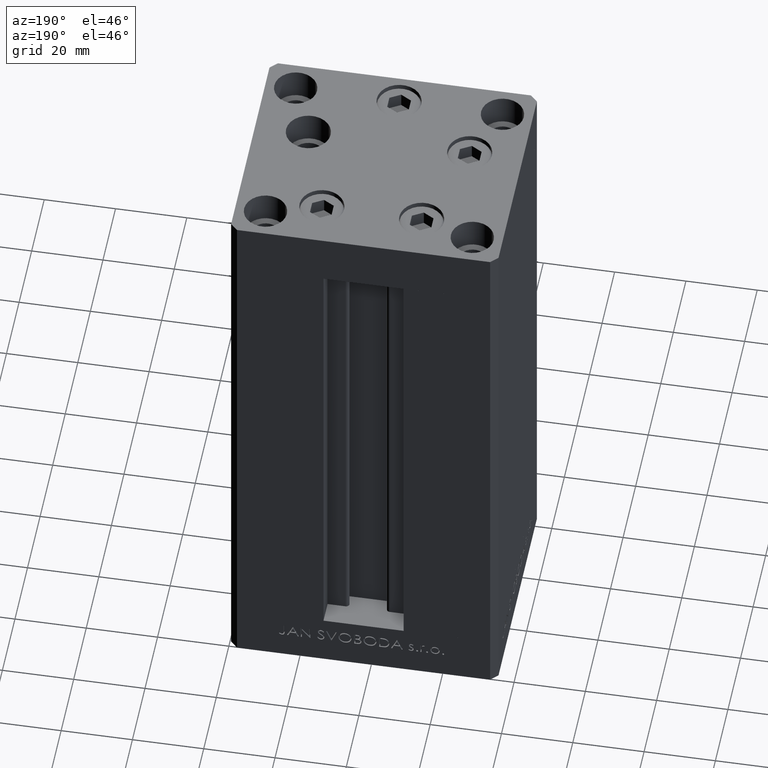
[diagram: clean part render]
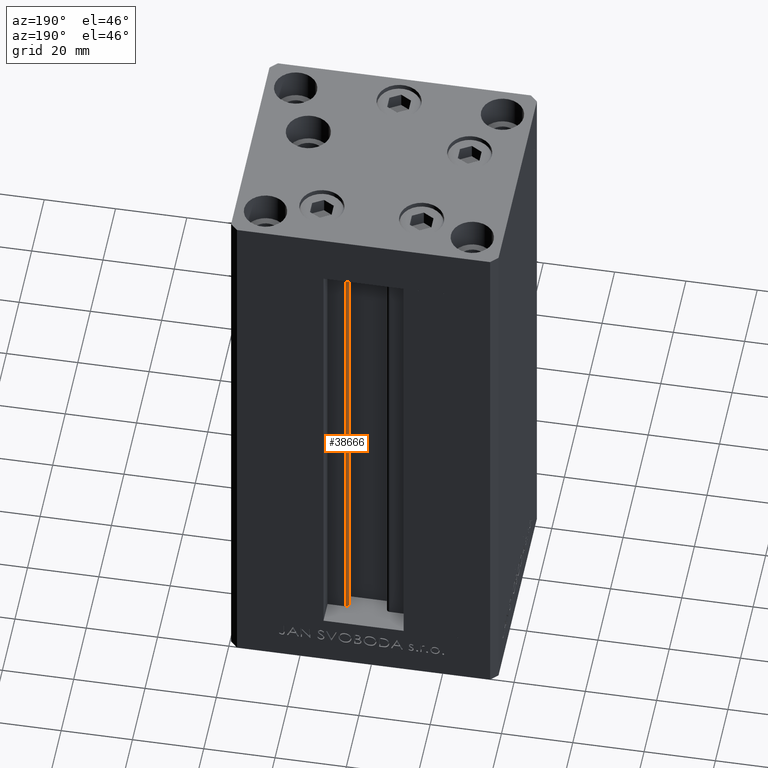
[diagram: same view with one face highlighted and labeled with its STEP entity id]
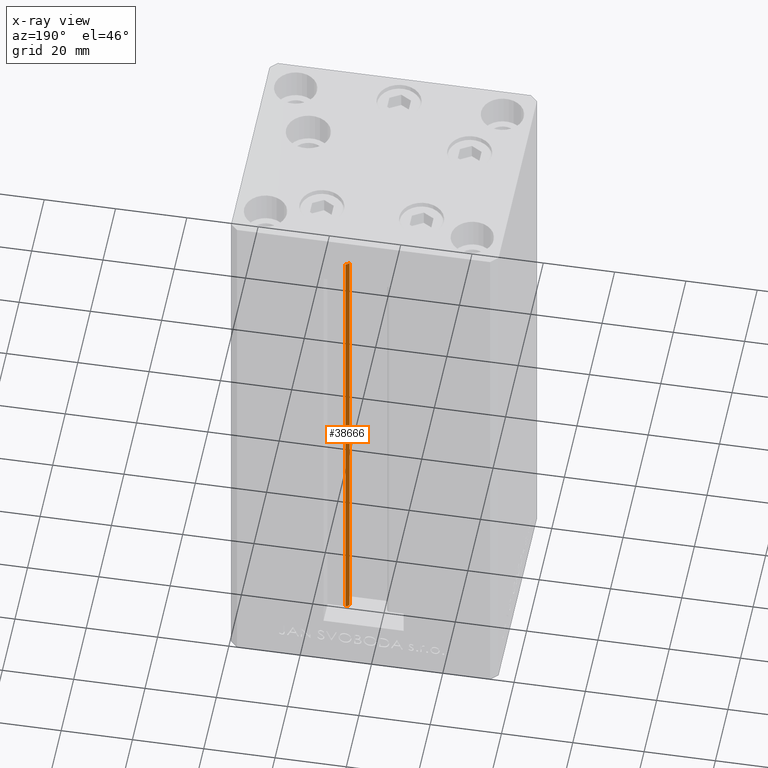
[diagram: x-ray of the same camera — body ghosted, the highlighted face saturated]
A machine part, auxiliary view. The second image highlights one B-rep face of the part: STEP entity #38666.
The next image is the same camera in x-ray: the body ghosted, the highlighted face saturated — about 0% of this face is hidden behind the body in this view.
In plain terms, the highlighted cylindrical surface (edge-blend (fillet) strip) has radius 0.9333 mm, axis along (0, 0, 1).
Its self-contained STEP definition (entity closure, byte-faithful):
#5651 = EDGE_CURVE ( 'NONE', #9911, #41054, #20130, .T. ) ;
#6624 = CARTESIAN_POINT ( 'NONE',  ( 6.183333333334001480, 25.99999999999999289, 0.000000000000000000 ) ) ;
#7673 = CIRCLE ( 'NONE', #35335, 0.9333333333340008142 ) ;
#7925 = DIRECTION ( 'NONE',  ( 1.000000000000000000, 0.000000000000000000, 0.000000000000000000 ) ) ;
#9813 = EDGE_LOOP ( 'NONE', ( #37670, #11087, #21184, #37427 ) ) ;
#9911 = VERTEX_POINT ( 'NONE', #6624 ) ;
#11087 = ORIENTED_EDGE ( 'NONE', *, *, #23016, .F. ) ;
#13632 = AXIS2_PLACEMENT_3D ( 'NONE', #19605, #18866, #29770 ) ;
#16259 = CARTESIAN_POINT ( 'NONE',  ( 5.375042956467948052, 24.59999999999899245, 136.0000000000000000 ) ) ;
#17763 = LINE ( 'NONE', #39797, #29450 ) ;
#18189 = DIRECTION ( 'NONE',  ( 1.000000000000000000, 0.000000000000000000, 0.000000000000000000 ) ) ;
#18866 = DIRECTION ( 'NONE',  ( -0.000000000000000000, -0.000000000000000000, 1.000000000000000000 ) ) ;
#19206 = VECTOR ( 'NONE', #30563, 1000.000000000000000 ) ;
#19276 = CIRCLE ( 'NONE', #33483, 0.9333333333340008142 ) ;
#19605 = CARTESIAN_POINT ( 'NONE',  ( 6.183333333334001480, 25.06666666666599141, 0.000000000000000000 ) ) ;
#20130 = LINE ( 'NONE', #42650, #19206 ) ;
#20694 = EDGE_CURVE ( 'NONE', #28314, #25243, #17763, .T. ) ;
#21184 = ORIENTED_EDGE ( 'NONE', *, *, #20694, .T. ) ;
#23016 = EDGE_CURVE ( 'NONE', #28314, #9911, #19276, .T. ) ;
#23345 = CARTESIAN_POINT ( 'NONE',  ( 5.375042956467947164, 24.59999999999899245, 0.000000000000000000 ) ) ;
#25243 = VERTEX_POINT ( 'NONE', #16259 ) ;
#26514 = CARTESIAN_POINT ( 'NONE',  ( 6.183333333334001480, 25.06666666666599141, 0.000000000000000000 ) ) ;
#28314 = VERTEX_POINT ( 'NONE', #23345 ) ;
#29330 = CARTESIAN_POINT ( 'NONE',  ( 6.183333333334001480, 25.06666666666599141, 136.0000000000000000 ) ) ;
#29450 = VECTOR ( 'NONE', #36331, 1000.000000000000000 ) ;
#29770 = DIRECTION ( 'NONE',  ( 1.000000000000000000, 0.000000000000000000, 0.000000000000000000 ) ) ;
#30563 = DIRECTION ( 'NONE',  ( -0.000000000000000000, -0.000000000000000000, 1.000000000000000000 ) ) ;
#32125 = DIRECTION ( 'NONE',  ( 0.000000000000000000, 0.000000000000000000, -1.000000000000000000 ) ) ;
#33483 = AXIS2_PLACEMENT_3D ( 'NONE', #26514, #41604, #7925 ) ;
#33854 = CARTESIAN_POINT ( 'NONE',  ( 6.183333333334001480, 25.99999999999999289, 136.0000000000000000 ) ) ;
#35078 = EDGE_CURVE ( 'NONE', #25243, #41054, #7673, .T. ) ;
#35335 = AXIS2_PLACEMENT_3D ( 'NONE', #29330, #32125, #18189 ) ;
#36331 = DIRECTION ( 'NONE',  ( -0.000000000000000000, -0.000000000000000000, 1.000000000000000000 ) ) ;
#37427 = ORIENTED_EDGE ( 'NONE', *, *, #35078, .T. ) ;
#37670 = ORIENTED_EDGE ( 'NONE', *, *, #5651, .F. ) ;
#37689 = FACE_OUTER_BOUND ( 'NONE', #9813, .T. ) ;
#38666 = ADVANCED_FACE ( 'NONE', ( #37689 ), #41877, .T. ) ;
#39797 = CARTESIAN_POINT ( 'NONE',  ( 5.375042956467947164, 24.59999999999899245, 0.000000000000000000 ) ) ;
#41054 = VERTEX_POINT ( 'NONE', #33854 ) ;
#41604 = DIRECTION ( 'NONE',  ( -0.000000000000000000, -0.000000000000000000, -1.000000000000000000 ) ) ;
#41877 = CYLINDRICAL_SURFACE ( 'NONE', #13632, 0.9333333333340008142 ) ;
#42650 = CARTESIAN_POINT ( 'NONE',  ( 6.183333333334001480, 25.99999999999999289, 0.000000000000000000 ) ) ;